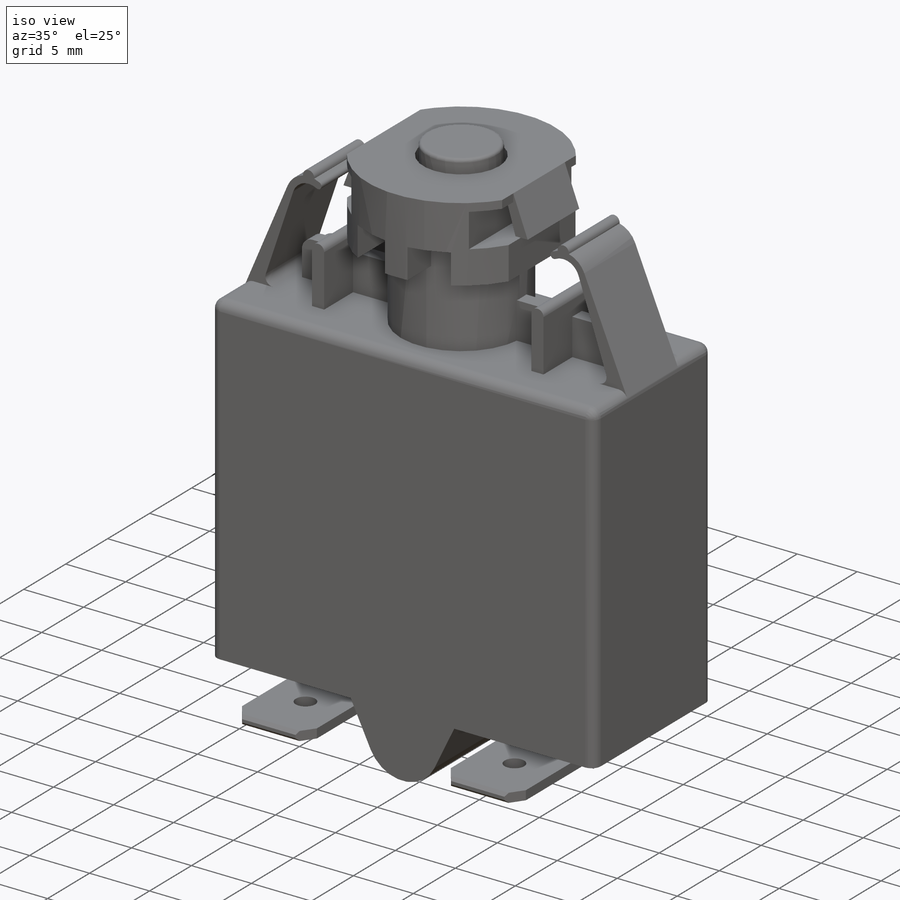
[diagram: iso view]
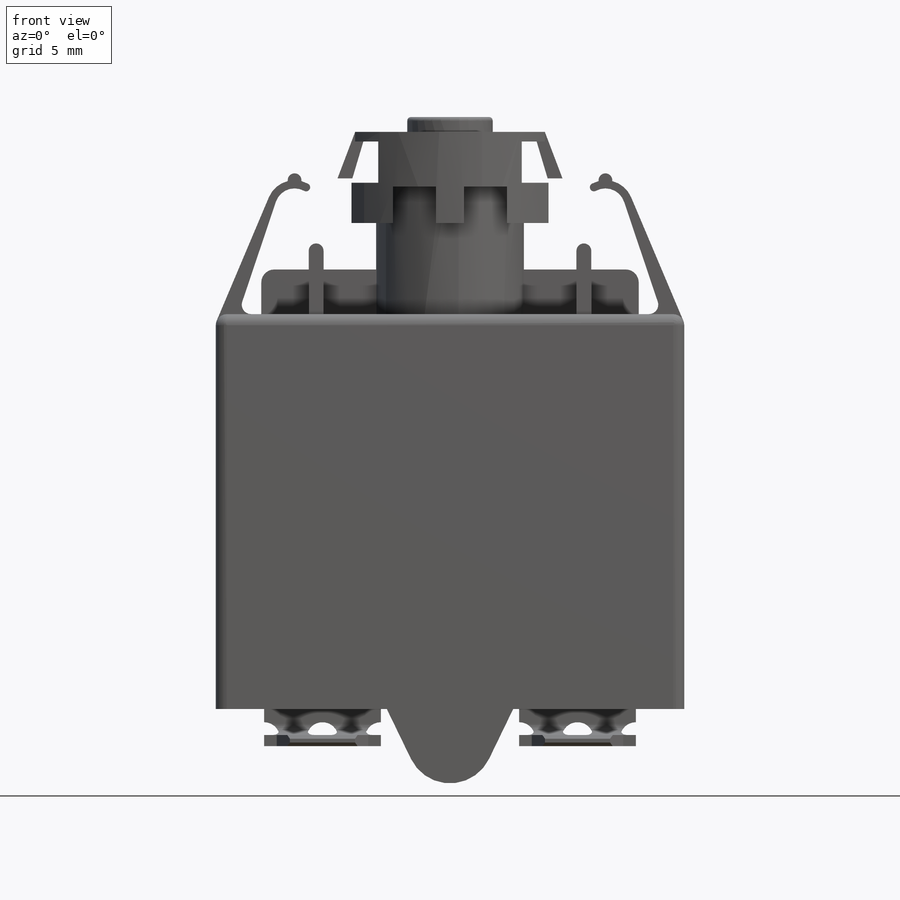
[diagram: front view]
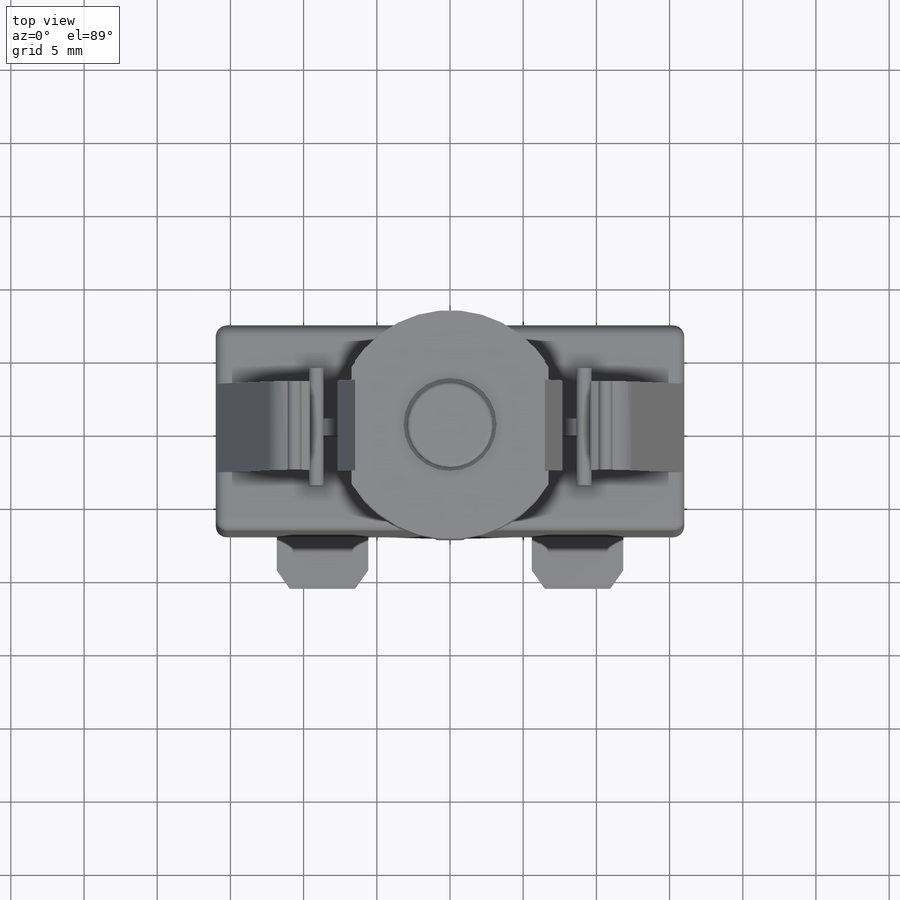
[diagram: top view]
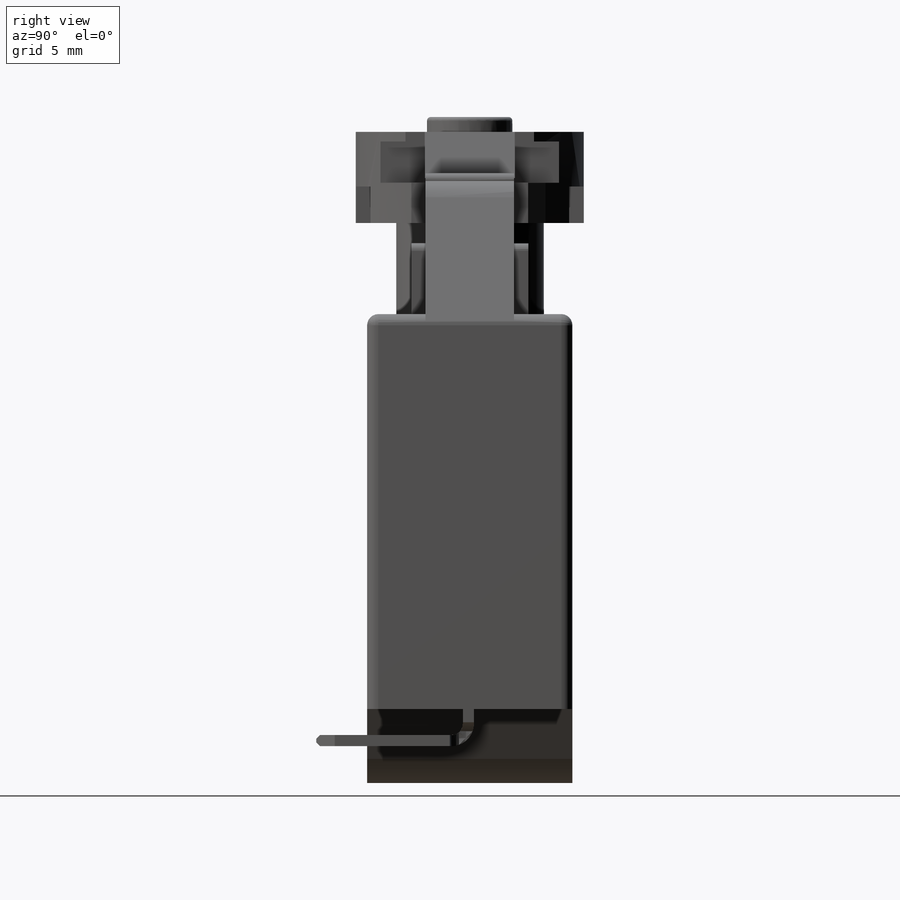
[diagram: right view]
SOLIDWORKS PART (.sldprt)
format: sldprt  version: not decoded by parser v0  size: 706,560 bytes
history: native  units: mm
features: sketch x15, extrude x10, cut_extrude x5, mirror x2, fillet x2, material x1, plane x1, chamfer x1 (+11 scaffold rows collapsed)
feature tree (48):
  scaffold x11  (default folders/planes/origin — collapsed)
  material  "Material <not specified>"
  sketch  "Sketch1"  dims[D1=32.004mm D2=26.9748mm D3=8.636mm D4=5.08mm D5=5.334mm]
  extrude  "Boss-Extrude1"  Depth=14.0208mm
  sketch  "Sketch2"  dims[D1=10.1092mm]
  extrude  "Boss-Extrude2"  Depth=12.446mm
  sketch  "Sketch3"  dims[D1=15.6464mm]
  extrude  "Boss-Extrude3"  Depth=6.223mm
  plane  "Plane1"
  sketch  "Sketch4"  dims[D1=13.462mm D2=9.8044mm D3=2.7432mm D4=12.954mm D5=2.8194mm D6=1.27mm D7=25.4mm D8=12.7mm]
  cut_extrude  "Cut-Extrude1"  [1 undecoded]
  sketch  "Sketch6"  dims[D1=1.905mm D2=2.4892mm D3=2.9464mm D4=1.27mm D5=2.54mm]
  cut_extrude  "Cut-Extrude2"  [1 undecoded]
  mirror  "Mirror1"
  sketch  "Sketch7"  dims[D1=3.175mm D2=1.016mm D3=15.367mm D4=1.016mm]
  extrude  "Boss-Extrude4"  Depth=6.1468mm
  sketch  "Sketch8"  dims[D1=5.842mm]
  extrude  "Boss-Extrude5"  Depth=1.016mm
  fillet  "Fillet1"  Radius=0.762mm
  sketch  "Sketch9"  dims[D1=6.35mm]
  cut_extrude  "Cut-Extrude3"  Depth=1.016mm
  sketch  "Sketch10"  dims[c1.D6=1.905mm c1.D7=0.9398mm c1.D9=0.635mm c1.D1=9.144mm c1.D2=1.27mm c1.D3=0.7112mm c1.D4=8.5852mm c2.D3=0.7112mm c2.D2=1.27mm c3.D3=2.8194mm c3.D5=8.382mm c3.D6=0.5588mm c3.D8=3.81mm]
  extrude  "Boss-Extrude6"  Depth=6.0452mm
  sketch  "Sketch11"  dims[D1=1.016mm D2=4.826mm D3=1.016mm D4=19.304mm]
  extrude  "Boss-Extrude7"  Depth=8.001mm
  sketch  "Sketch12"  dims[D3=0.889mm D1=25.781mm D2=3.048mm]
  extrude  "Boss-Extrude8"  Depth=1.143mm
  sketch  "Sketch22"  dims[D1=0.762mm D2=6.731mm D3=7.9756mm D4=3.302mm]
  extrude  "Boss-Extrude9"  Depth=2.54mm
  sketch  "Sketch23"  dims[D1=10.7696mm D2=0.762mm]
  extrude  "Boss-Extrude10"  Depth=7.9756mm
  fillet  "Fillet2"  Radius=1.524mm
  sketch  "Sketch24"  dims[D1=1.6256mm D7=2.1844mm D2=3.556mm D3=1.27mm D4=6.2484mm D5=4.445mm D6=2.667mm D8=1.016mm D9=1.524mm D10=0.254mm D11=0.254mm D12=1.27mm D13=1.27mm]
  cut_extrude  "Cut-Extrude4"  Depth=1.016mm
  sketch  "Sketch25"  dims[D1=2.1844mm D2=0.508mm]
  cut_extrude  "Cut-Extrude5"  Depth=1.016mm
  mirror  "Mirror2"
  chamfer  "Chamfer1"  Distance=0.254mm Angle=45deg
decode coverage: 31 of 35 modeling features carry decoded parameters
note: 2 parameter values undecoded
note: suppression state not decoded; provenance and decode notes live in map.json
